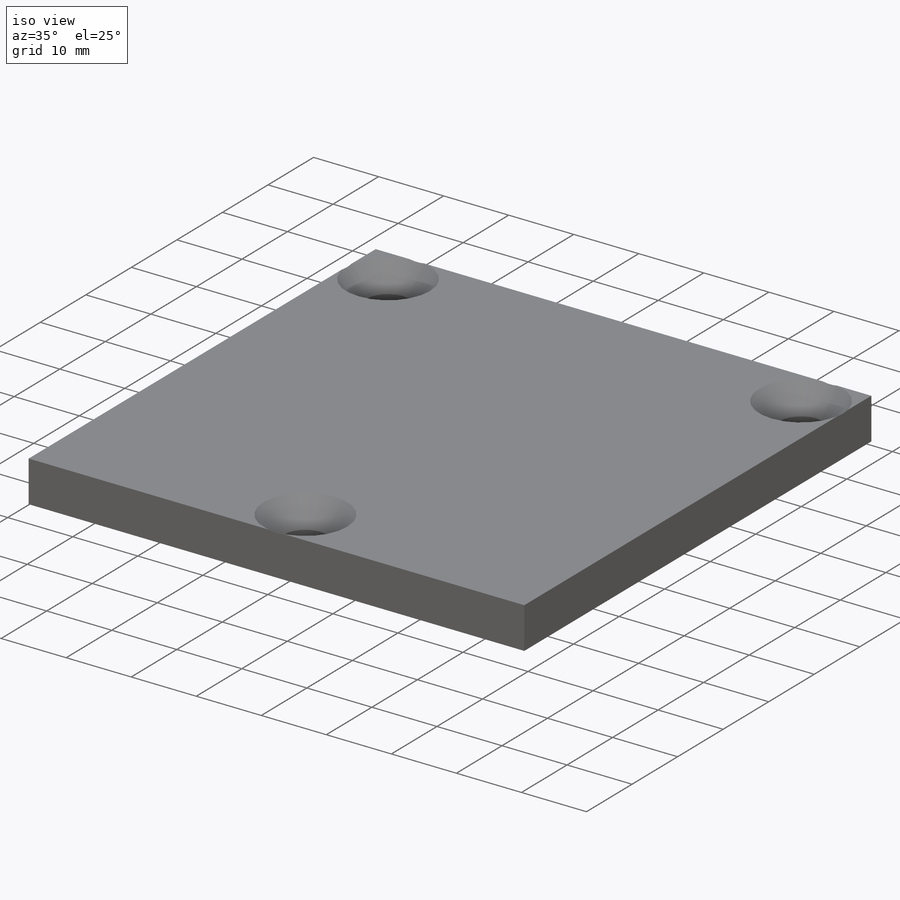
[diagram: iso view]
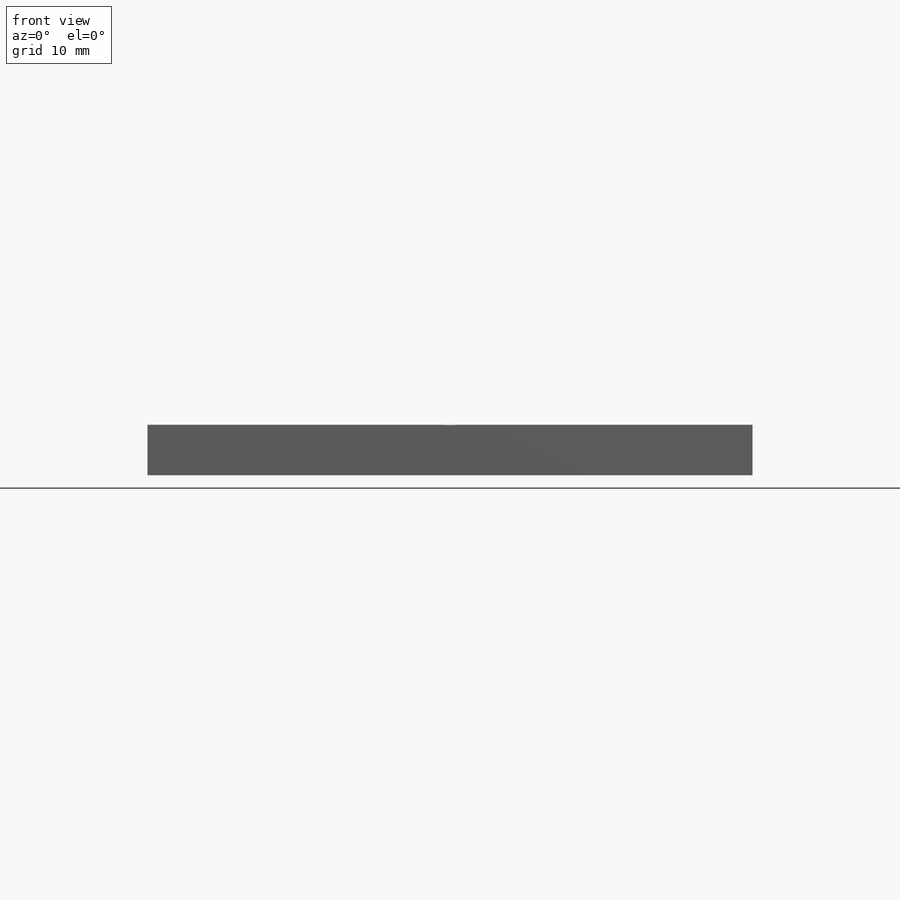
[diagram: front view]
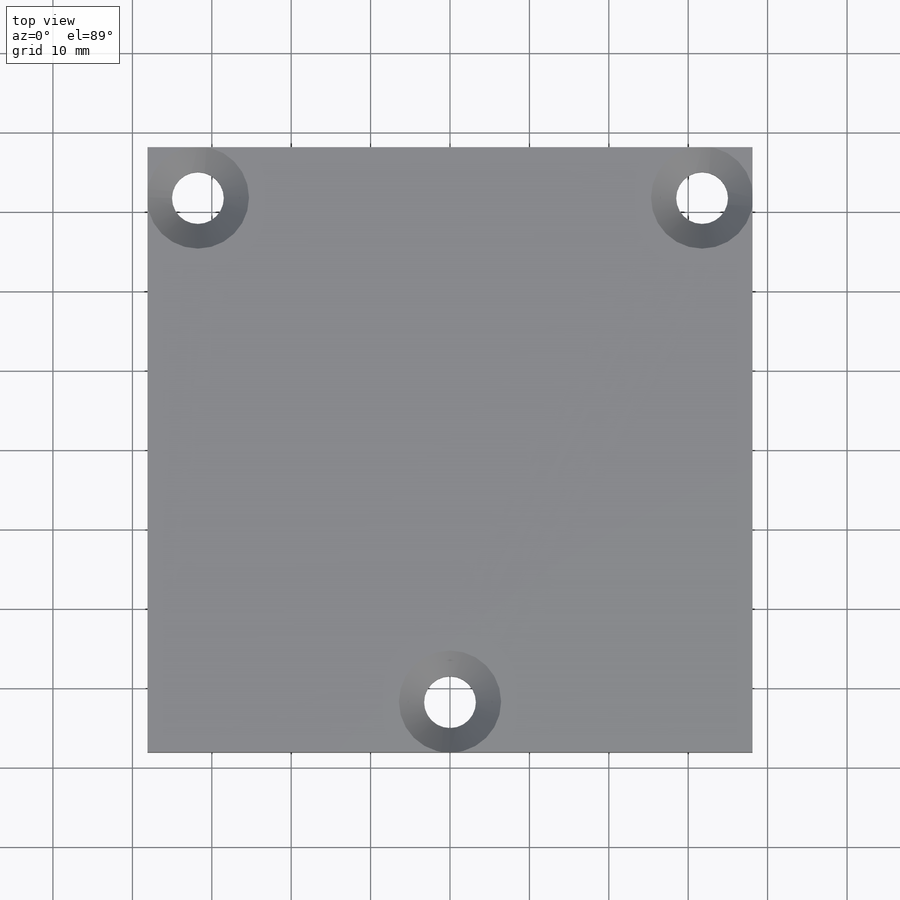
[diagram: top view]
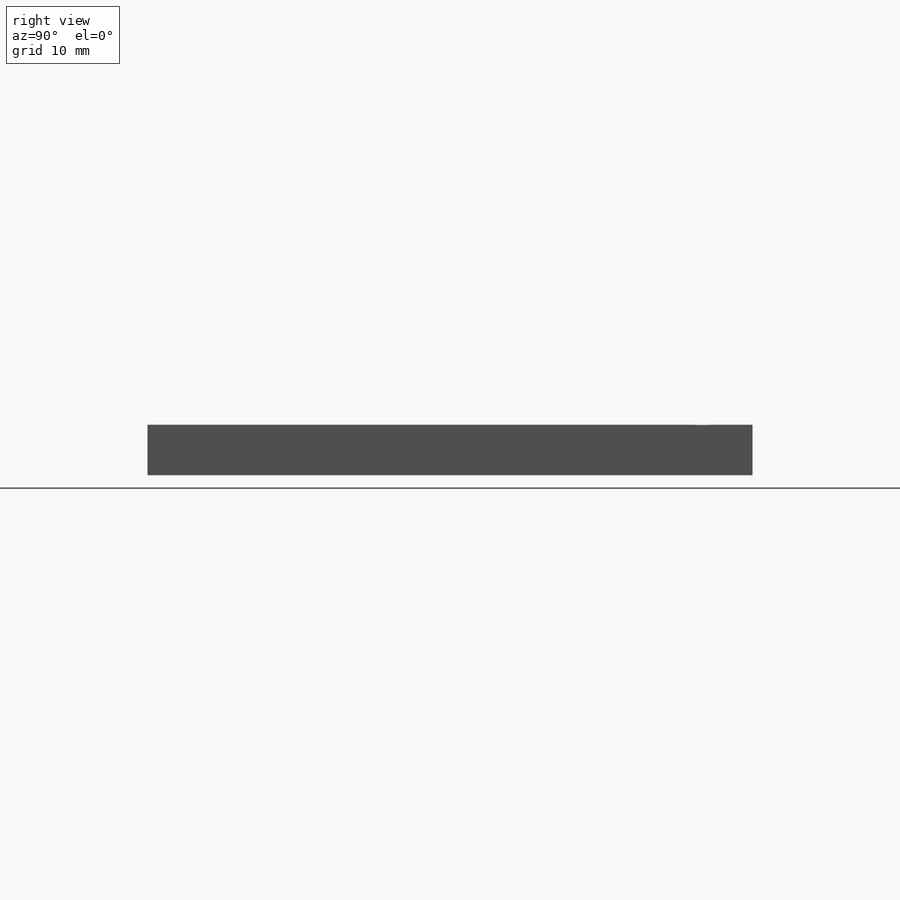
[diagram: right view]
SOLIDWORKS PART (.sldprt)
format: sldprt  version: not decoded by parser v0  size: 950,272 bytes
history: native  units: mm
features: sketch x4, plane x3, material x1, extrude x1, cut_extrude x1, hole x1, pattern_linear x1 + 2 further entries (+9 scaffold rows collapsed)
feature tree (23):
  scaffold x9  (default folders/planes/origin — collapsed)
  material  "Material <not specified>"
  plane  "Plane X-Y"
  plane  "Plane X-Z"
  plane  "Plane Y-Z"
  "Axis - Y"
  "Axis - Z"
  sketch  "Sketch1"  dims[D1=76.2mm]
  extrude  "Extrude1"  Depth=6.35mm
  sketch  "Sketch16"  dims[D1=1.27mm]
  cut_extrude  "Cut-Extrude3"  Depth=0.127mm
  hole  "CSK for 1/4 Flat Head Machine Screw1"  Diameter=6.5278mm Depth=6.35mm
  sketch  "Sketch19"  dims[D1=6.35mm D2=6.35mm]
  sketch  "Sketch18"  dims[hole-wizard template sketch: 55 standard entries collapsed; hole parameters kept: c17.Thru Hole Depth=6.35mm c17.Near C'Sink Dia.=12.8778mm c17.D4=~3.666174mm c17.Near C'Sink Angle=82.0deg]
  pattern_linear  "LPattern2"  Count1=3 Count2=3 Spacing1=31.75mm Spacing2=31.75mm
decode coverage: 8 of 8 modeling features carry decoded parameters; 2 rows unclassified (native names shown)
note: ~ marks probable driven/reference dimensions
note: suppression state not decoded; provenance and decode notes live in map.json
